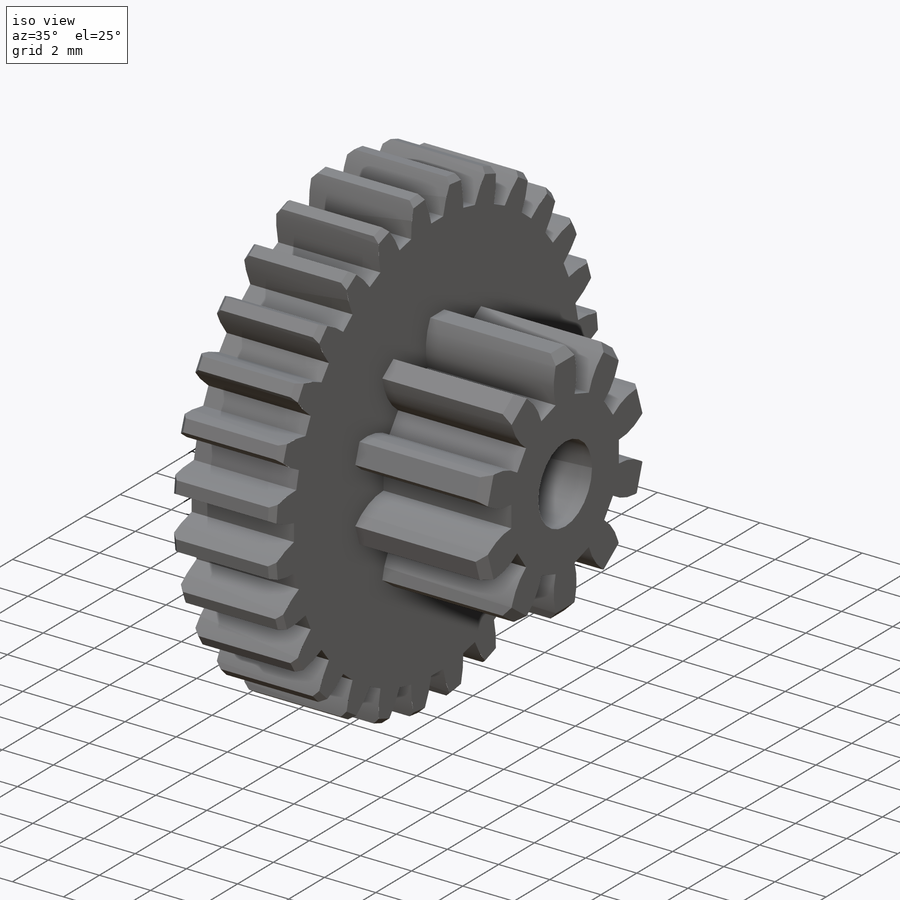
[diagram: iso view]
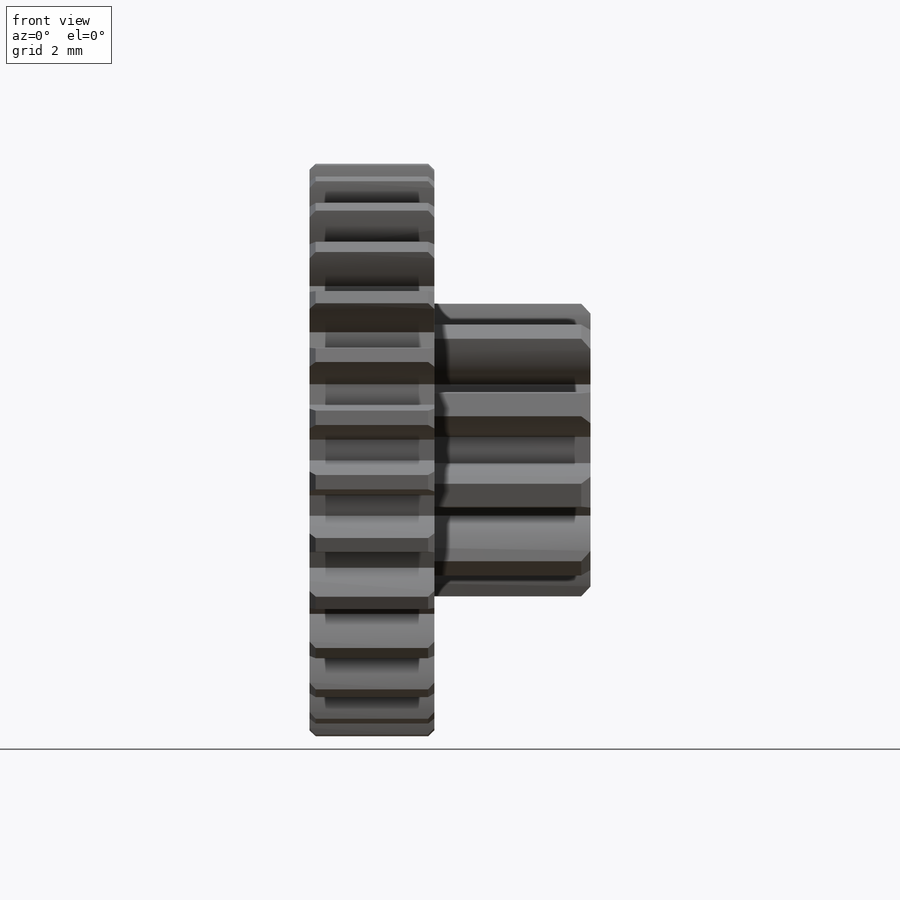
[diagram: front view]
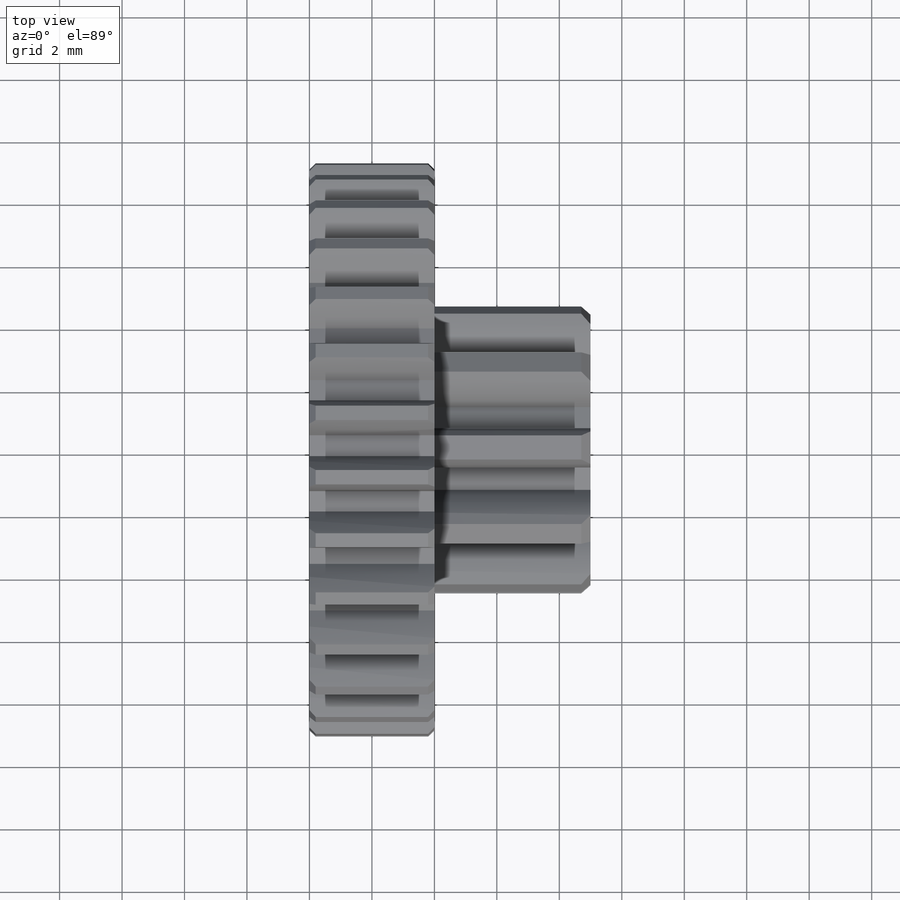
[diagram: top view]
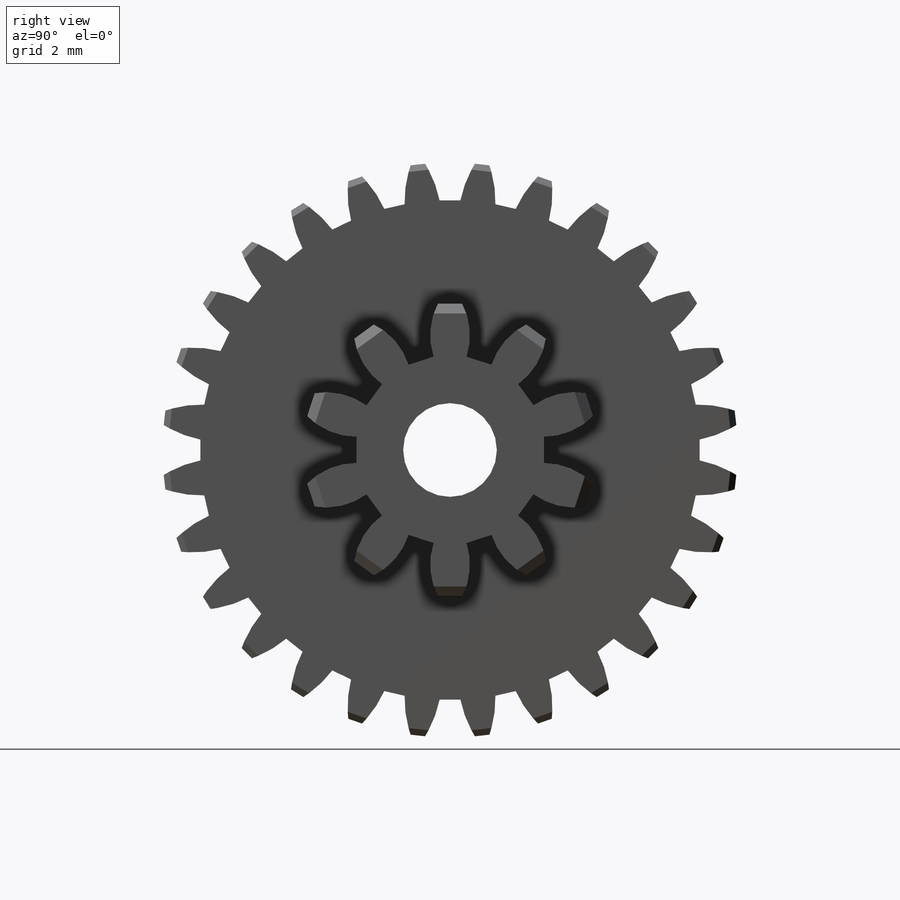
[diagram: right view]
SOLIDWORKS PART (.sldprt)
format: sldprt  version: not decoded by parser v0  size: 837,632 bytes
history: native  units: mm
features: sketch x6, plane x4, cut_extrude x4, chamfer x2, pattern_circular x2, material x1, revolve x1, extrude x1 (+10 scaffold rows collapsed)
feature tree (31):
  scaffold x10  (default folders/planes/origin — collapsed)
  material  "材质 <未指定>"
  plane  "Plane1"
  plane  "Plane2"
  plane  "Plane3"
  sketch  "BasProSke"  dims[c1.D2=~57.067268mm c1.D3=~57.067268mm c1.Fillet_rad=0.635mm c1.D1=80.0mm c1.h=15.875mm c2.D2=15.875mm c2.G1=0.635mm c2.G2=0.635mm c2.H2=~13.49375mm c2.Diameter=~80.079479mm c2.H1=~13.49375mm c2.Thickness=4.0mm c3.Diameter=18.4mm c3.MHD=25.4mm c3.D2=12.7mm c4.MHD=25.4mm c4.MHD_radius=12.7mm c5.MHD_radius=12.7mm c5.D1=~92.83079mm c6.D1=45.0deg c6.D2=~92.83079mm c7.D2=45.0deg]
  revolve  "Base-Revolve"  Angle=360deg
  chamfer  "倒角1"  Distance=0.2mm Angle=45deg
  sketch  "TooCutSke"  dims[c1.D1=50.8mm c1.D2=101.6mm c1.R=~8.015287mm c2.D1=~10.148041mm c2.E=~20.715287mm c2.F=~13.61213mm c2.R=15.24mm c2.Db=~91.584948mm c2.H=19.05mm c2.Pitch_radius=~111.396948mm c2.Rt=38.1mm c2.Root_dia=16.0mm c2.Overcut_dia=18.9508mm c2.Pitch_dia=17.5mm c2.Base_dia=~16.444621mm c2.Flank_rad=3.5mm c2.Root_fillet=~1.58877mm c3.D1=3.5mm c3.D3=45.0mm c4.D3=30.0deg c4.Pitch_radius=~37.132316mm c4.D1=~5.323628mm c4.W=~20.884668mm c4.V=0.762mm c5.V=~7.601398mm c5.D1=107.0mm c6.D1=~11.986918deg c7.D1=6.35mm c7.Ag=66.0deg c7.Cp=3.81mm c8.D1=~9.360719mm c9.D1=19.0deg c10.D1=~4.754529mm c10.Ag=64.0deg c10.L=~2.066544mm c10.Wf=6.858mm c11.D1=~10.255297mm c11.ANGLE=40.0deg c12.D1=~10.255297mm c12.Angle=40.0deg c13.D1=12.7mm c13.D2=~288.740008mm c13.TestA=130.0deg c13.TestL=63.5mm c14.D2=~92.83079mm c14.TestA=70.0deg c14.D1=~14.973046mm c14.Angle=18.0deg c15.D1=~60.512969mm c15.Half_ang=~6.428571deg c15.Half_CT=~0.502167mm c16.D1=31.75mm c16.Pres_ang=14.5deg c16.A=~41.666667deg c16.B=~11.777778deg c16.Angle=40.0deg]
  cut_extrude  "ToothCut"  [1 undecoded]
  pattern_circular  "TeethCuts"  Count=28 Angle=12.857143deg Num_teeth=28
  plane  "FarPln"  Offset=5mm Thickness=5mm
  sketch  "草图1"  dims[D1=9.4mm]
  extrude  "凸台-拉伸1"  Depth=5mm
  chamfer  "倒角2"  Distance=0.3mm Angle=45deg
  sketch  "草图2"  dims[c1.D3=10.0mm c1.D4=8.4mm c1.D5=6.0mm c2.D3=10.1mm c2.D1=~4.425296mm c3.D1=0.5deg c4.D1=0.6mm c4.D2=~5.876959mm c5.D2=18.0deg c5.D6=~1.411983mm]
  cut_extrude  "切除-拉伸1"  [1 undecoded]
  pattern_circular  "阵列(圆周)1"  Count=10 Angle=36deg
  sketch  "草图3"  dims[D1=3.0mm]
  cut_extrude  "切除-拉伸2"  [1 undecoded]
  sketch  "草图4"  dims[D1=11.0mm]
  cut_extrude  "切除-拉伸3"  Depth=2mm
decode coverage: 13 of 16 modeling features carry decoded parameters
note: ~ marks probable driven/reference dimensions
note: 3 parameter values undecoded
summary: no parameter record found for 3 features
note: suppression state not decoded; provenance and decode notes live in map.json
